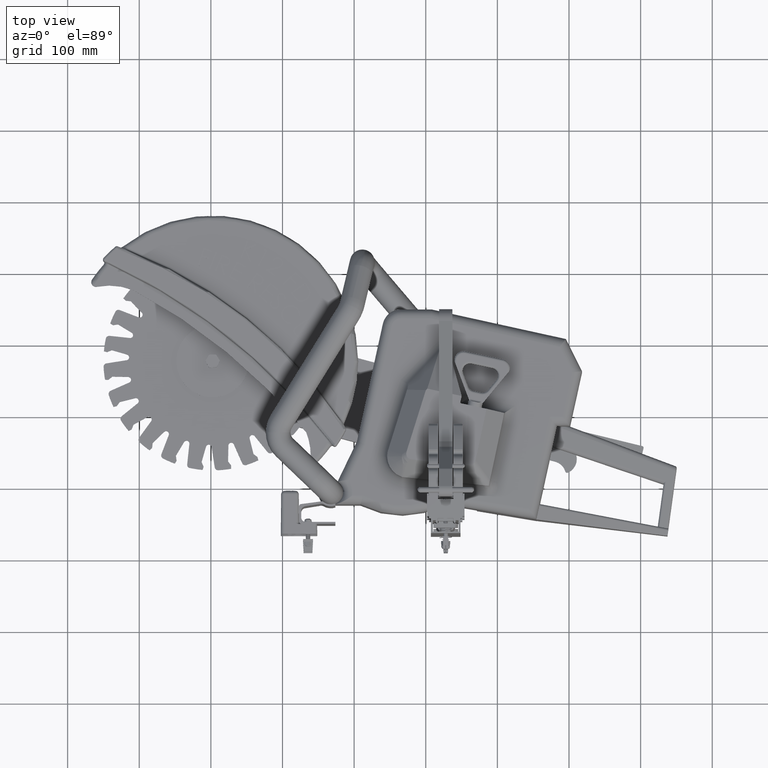
[diagram: clean part render]
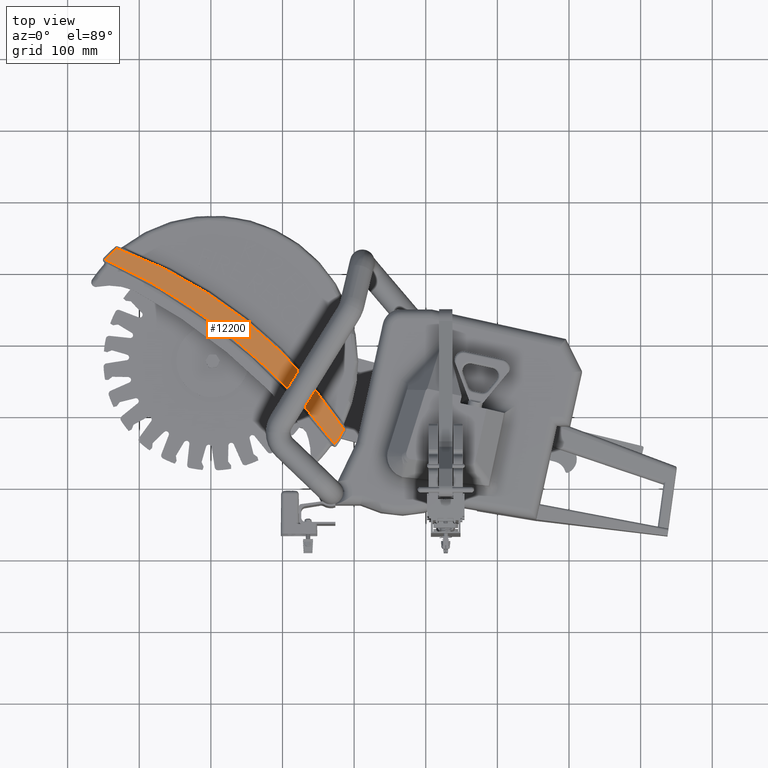
[diagram: same view with one face highlighted and labeled with its STEP entity id]
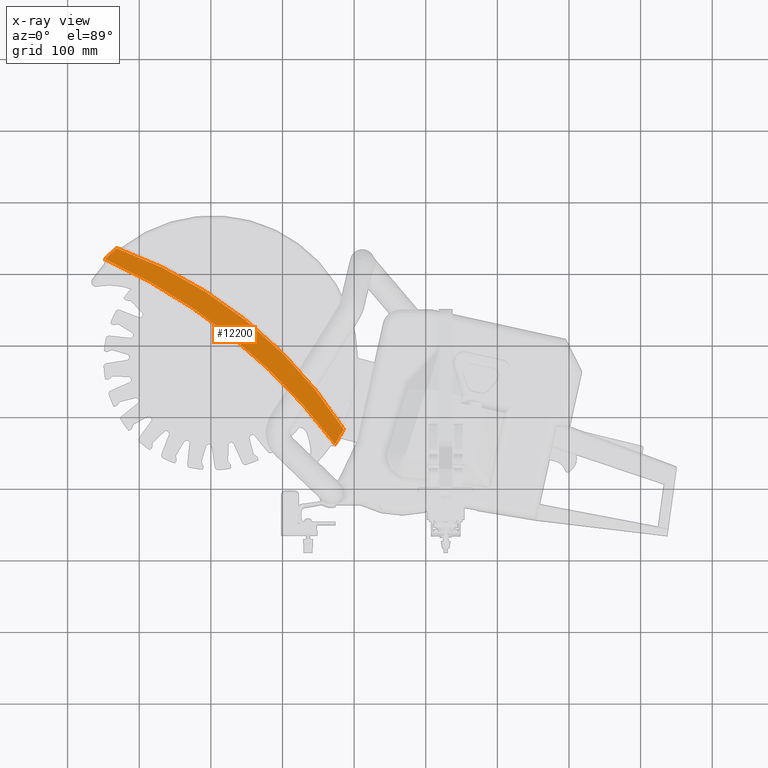
[diagram: x-ray of the same camera — body ghosted, the highlighted face saturated]
A machine part, top view. The second image highlights one B-rep face of the part: STEP entity #12200.
The next image is the same camera in x-ray: the body ghosted, the highlighted face saturated — about 0% of this face is hidden behind the body in this view.
In plain terms, the highlighted planar face has unit normal (0, 0, 1).
Its self-contained STEP definition (entity closure, byte-faithful):
#3654 = VERTEX_POINT ( 'NONE', #36654 ) ;
#5446 = AXIS2_PLACEMENT_3D ( 'NONE', #73469, #31536, #80462 ) ;
#8599 = EDGE_CURVE ( 'NONE', #18655, #76845, #24810, .T. ) ;
#9685 = CIRCLE ( 'NONE', #30964, 32.23194367157183400 ) ;
#12200 = ADVANCED_FACE ( 'NONE', ( #39748 ), #30118, .T. ) ;
#18655 = VERTEX_POINT ( 'NONE', #41430 ) ;
#23455 = ORIENTED_EDGE ( 'NONE', *, *, #80667, .T. ) ;
#24514 = AXIS2_PLACEMENT_3D ( 'NONE', #86104, #30428, #79357 ) ;
#24810 = CIRCLE ( 'NONE', #5446, 8.125000000000000000 ) ;
#25352 = CIRCLE ( 'NONE', #36491, 8.125000000000000000 ) ;
#30118 = PLANE ( 'NONE',  #24514 ) ;
#30428 = DIRECTION ( 'NONE',  ( 0.0000000000000000000, 0.0000000000000000000, 1.000000000000000000 ) ) ;
#30964 = AXIS2_PLACEMENT_3D ( 'NONE', #73589, #31657, #80578 ) ;
#31536 = DIRECTION ( 'NONE',  ( 0.0000000000000000000, 0.0000000000000000000, 1.000000000000000000 ) ) ;
#31657 = DIRECTION ( 'NONE',  ( -0.0000000000000000000, -0.0000000000000000000, -1.000000000000000000 ) ) ;
#36491 = AXIS2_PLACEMENT_3D ( 'NONE', #39767, #88781, #46831 ) ;
#36654 = CARTESIAN_POINT ( 'NONE',  ( 7.205237008807522200, -3.755021257850668100, 0.8750000000000003300 ) ) ;
#38554 = CARTESIAN_POINT ( 'NONE',  ( 6.719316235298555800, -4.567977050079525400, 0.8750000000000003300 ) ) ;
#38700 = CARTESIAN_POINT ( 'NONE',  ( -13.62133463793646200, -17.08735302623862400, 0.8750000000000003300 ) ) ;
#39748 = FACE_OUTER_BOUND ( 'NONE', #61931, .T. ) ;
#39767 = CARTESIAN_POINT ( 'NONE',  ( 0.0000000000000000000, 0.0000000000000000000, 0.8750000000000003300 ) ) ;
#41430 = CARTESIAN_POINT ( 'NONE',  ( -5.266570965924555200, 6.186990808210442300, 0.8750000000000003300 ) ) ;
#45765 = DIRECTION ( 'NONE',  ( 1.000000000000000000, 0.0000000000000000000, 0.0000000000000000000 ) ) ;
#46831 = DIRECTION ( 'NONE',  ( 1.000000000000000000, 0.0000000000000000000, 0.0000000000000000000 ) ) ;
#50856 = EDGE_CURVE ( 'NONE', #77368, #3654, #25352, .T. ) ;
#61931 = EDGE_LOOP ( 'NONE', ( #23455, #80424, #78763, #85004 ) ) ;
#64134 = CIRCLE ( 'NONE', #71889, 24.72846855224413400 ) ;
#65396 = EDGE_CURVE ( 'NONE', #3654, #18655, #64134, .T. ) ;
#71889 = AXIS2_PLACEMENT_3D ( 'NONE', #38700, #87710, #45765 ) ;
#73469 = CARTESIAN_POINT ( 'NONE',  ( 0.0000000000000000000, 0.0000000000000000000, 0.8750000000000003300 ) ) ;
#73589 = CARTESIAN_POINT ( 'NONE',  ( -19.14437786356378600, -23.80251682642595400, 0.8750000000000003300 ) ) ;
#74388 = CARTESIAN_POINT ( 'NONE',  ( -5.902393061457462200, 5.583670938375467700, 0.8750000000000003300 ) ) ;
#76845 = VERTEX_POINT ( 'NONE', #74388 ) ;
#77368 = VERTEX_POINT ( 'NONE', #38554 ) ;
#78763 = ORIENTED_EDGE ( 'NONE', *, *, #65396, .T. ) ;
#79357 = DIRECTION ( 'NONE',  ( 1.000000000000000000, 0.0000000000000000000, -0.0000000000000000000 ) ) ;
#80424 = ORIENTED_EDGE ( 'NONE', *, *, #50856, .T. ) ;
#80462 = DIRECTION ( 'NONE',  ( 1.000000000000000000, 0.0000000000000000000, 0.0000000000000000000 ) ) ;
#80578 = DIRECTION ( 'NONE',  ( 1.000000000000000000, 1.762923106568138800E-015, 0.0000000000000000000 ) ) ;
#80667 = EDGE_CURVE ( 'NONE', #76845, #77368, #9685, .T. ) ;
#85004 = ORIENTED_EDGE ( 'NONE', *, *, #8599, .T. ) ;
#86104 = CARTESIAN_POINT ( 'NONE',  ( -9.572188931781894900, -11.90125841321297700, 0.8750000000000003300 ) ) ;
#87710 = DIRECTION ( 'NONE',  ( 0.0000000000000000000, 0.0000000000000000000, 1.000000000000000000 ) ) ;
#88781 = DIRECTION ( 'NONE',  ( 0.0000000000000000000, 0.0000000000000000000, 1.000000000000000000 ) ) ;